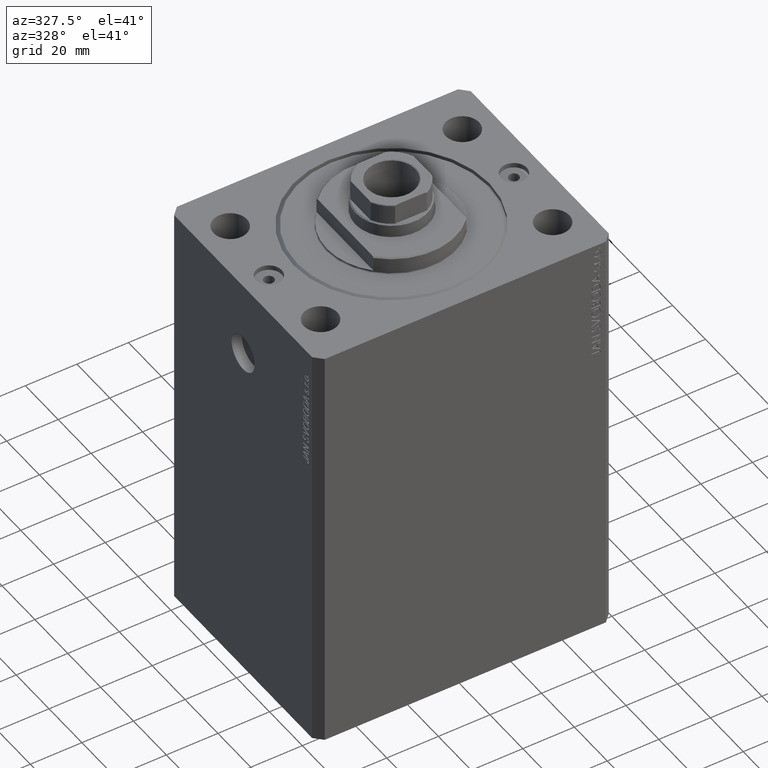
[diagram: clean part render]
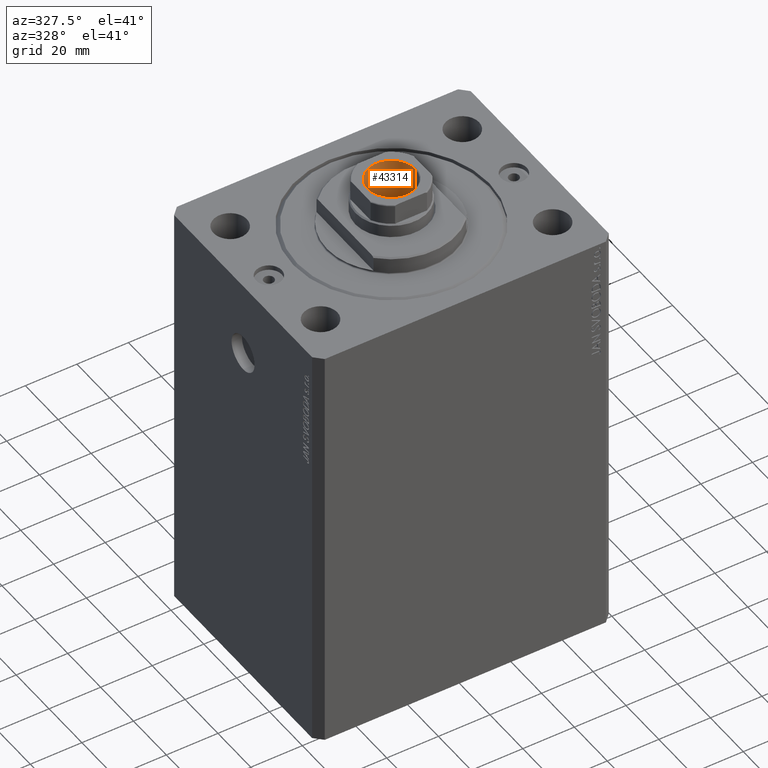
[diagram: same view with one face highlighted and labeled with its STEP entity id]
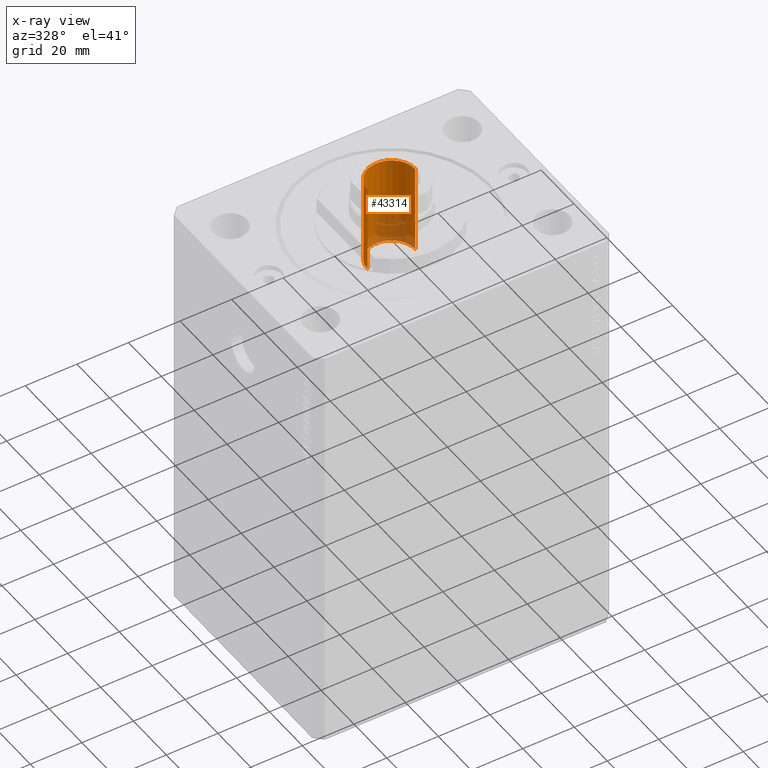
[diagram: x-ray of the same camera — body ghosted, the highlighted face saturated]
A machine part, auxiliary view. The second image highlights one B-rep face of the part: STEP entity #43314.
The next image is the same camera in x-ray: the body ghosted, the highlighted face saturated — about 29% of this face is hidden behind the body in this view.
In plain terms, the highlighted cylindrical surface (edge-blend (fillet) strip) has radius 9.25 mm, axis along (0, 0, 1).
Its self-contained STEP definition (entity closure, byte-faithful):
#1861 = LINE ( 'NONE', #9223, #11520 ) ;
#1935 = CIRCLE ( 'NONE', #34696, 9.249999999999994671 ) ;
#2326 = DIRECTION ( 'NONE',  ( -0.000000000000000000, -0.000000000000000000, 1.000000000000000000 ) ) ;
#3539 = CYLINDRICAL_SURFACE ( 'NONE', #13756, 9.249999999999996447 ) ;
#4862 = ORIENTED_EDGE ( 'NONE', *, *, #38331, .F. ) ;
#5041 = DIRECTION ( 'NONE',  ( 0.000000000000000000, 0.000000000000000000, 1.000000000000000000 ) ) ;
#5866 = EDGE_CURVE ( 'NONE', #39136, #34584, #1935, .T. ) ;
#6651 = CARTESIAN_POINT ( 'NONE',  ( 0.000000000000000000, 0.000000000000000000, 167.0000000000000000 ) ) ;
#7717 = CARTESIAN_POINT ( 'NONE',  ( -9.249999999999994671, 1.132798289211300909E-15, 132.0000000000000000 ) ) ;
#8891 = VERTEX_POINT ( 'NONE', #24744 ) ;
#9223 = CARTESIAN_POINT ( 'NONE',  ( 9.249999999999996447, 0.000000000000000000, 167.0000000000000000 ) ) ;
#10843 = DIRECTION ( 'NONE',  ( 1.000000000000000000, 0.000000000000000000, 0.000000000000000000 ) ) ;
#11520 = VECTOR ( 'NONE', #2326, 1000.000000000000000 ) ;
#12213 = VECTOR ( 'NONE', #28942, 1000.000000000000000 ) ;
#12324 = EDGE_CURVE ( 'NONE', #35486, #8891, #44086, .T. ) ;
#13756 = AXIS2_PLACEMENT_3D ( 'NONE', #6651, #36230, #47243 ) ;
#13780 = FACE_OUTER_BOUND ( 'NONE', #46313, .T. ) ;
#15520 = DIRECTION ( 'NONE',  ( 1.000000000000000000, 0.000000000000000000, 0.000000000000000000 ) ) ;
#17308 = AXIS2_PLACEMENT_3D ( 'NONE', #41353, #5041, #15520 ) ;
#18002 = DIRECTION ( 'NONE',  ( -0.000000000000000000, -0.000000000000000000, 1.000000000000000000 ) ) ;
#18200 = EDGE_CURVE ( 'NONE', #39136, #35486, #1861, .T. ) ;
#18645 = ORIENTED_EDGE ( 'NONE', *, *, #18200, .T. ) ;
#24744 = CARTESIAN_POINT ( 'NONE',  ( -9.249999999999996447, 1.132798289211301304E-15, 166.6999999999999886 ) ) ;
#28942 = DIRECTION ( 'NONE',  ( -0.000000000000000000, -0.000000000000000000, 1.000000000000000000 ) ) ;
#29011 = CARTESIAN_POINT ( 'NONE',  ( 0.000000000000000000, 0.000000000000000000, 132.0000000000000000 ) ) ;
#29183 = CARTESIAN_POINT ( 'NONE',  ( -9.249999999999996447, 1.132798289211301304E-15, 167.0000000000000000 ) ) ;
#33492 = CARTESIAN_POINT ( 'NONE',  ( 9.249999999999996447, 0.000000000000000000, 166.6999999999999886 ) ) ;
#34584 = VERTEX_POINT ( 'NONE', #7717 ) ;
#34674 = ORIENTED_EDGE ( 'NONE', *, *, #12324, .T. ) ;
#34696 = AXIS2_PLACEMENT_3D ( 'NONE', #29011, #18002, #10843 ) ;
#35486 = VERTEX_POINT ( 'NONE', #33492 ) ;
#36230 = DIRECTION ( 'NONE',  ( -0.000000000000000000, -0.000000000000000000, 1.000000000000000000 ) ) ;
#36339 = LINE ( 'NONE', #29183, #12213 ) ;
#38331 = EDGE_CURVE ( 'NONE', #34584, #8891, #36339, .T. ) ;
#39136 = VERTEX_POINT ( 'NONE', #43362 ) ;
#41353 = CARTESIAN_POINT ( 'NONE',  ( 0.000000000000000000, 0.000000000000000000, 166.6999999999999886 ) ) ;
#43142 = ORIENTED_EDGE ( 'NONE', *, *, #5866, .F. ) ;
#43314 = ADVANCED_FACE ( 'NONE', ( #13780 ), #3539, .F. ) ;
#43362 = CARTESIAN_POINT ( 'NONE',  ( 9.249999999999994671, 0.000000000000000000, 132.0000000000000000 ) ) ;
#44086 = CIRCLE ( 'NONE', #17308, 9.249999999999996447 ) ;
#46313 = EDGE_LOOP ( 'NONE', ( #4862, #43142, #18645, #34674 ) ) ;
#47243 = DIRECTION ( 'NONE',  ( 1.000000000000000000, 0.000000000000000000, 0.000000000000000000 ) ) ;